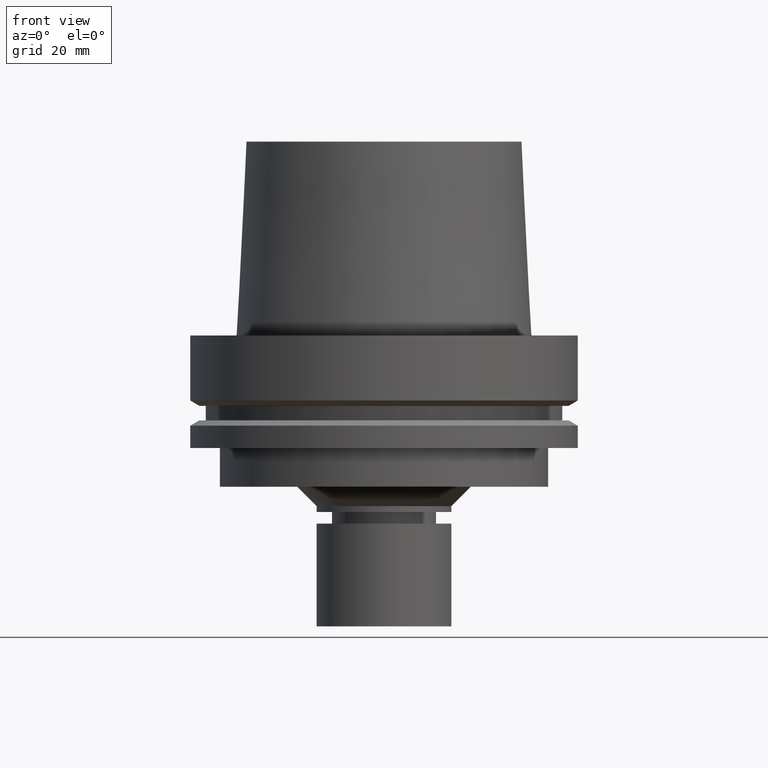
[diagram: clean part render]
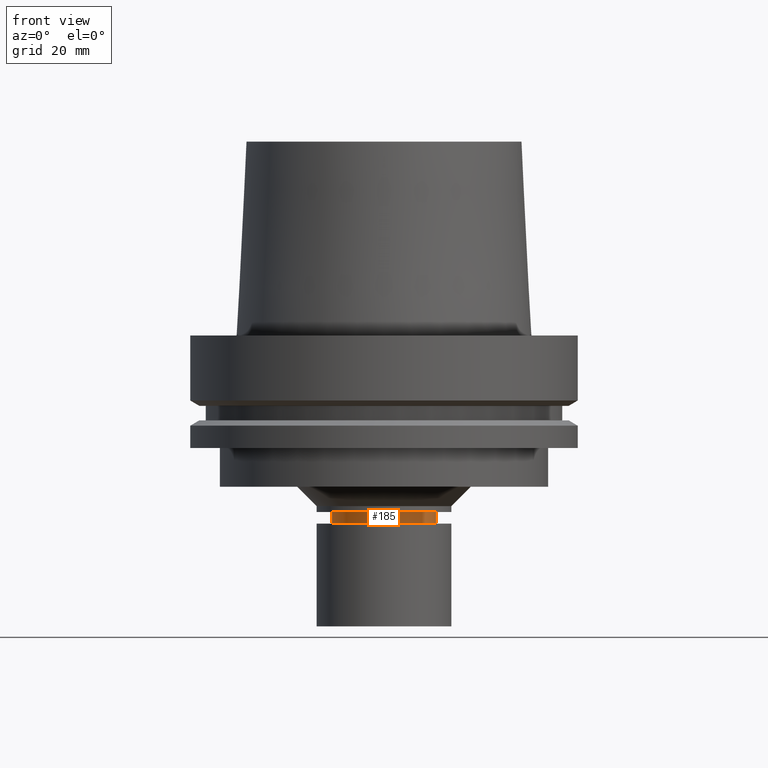
[diagram: same view with one face highlighted and labeled with its STEP entity id]
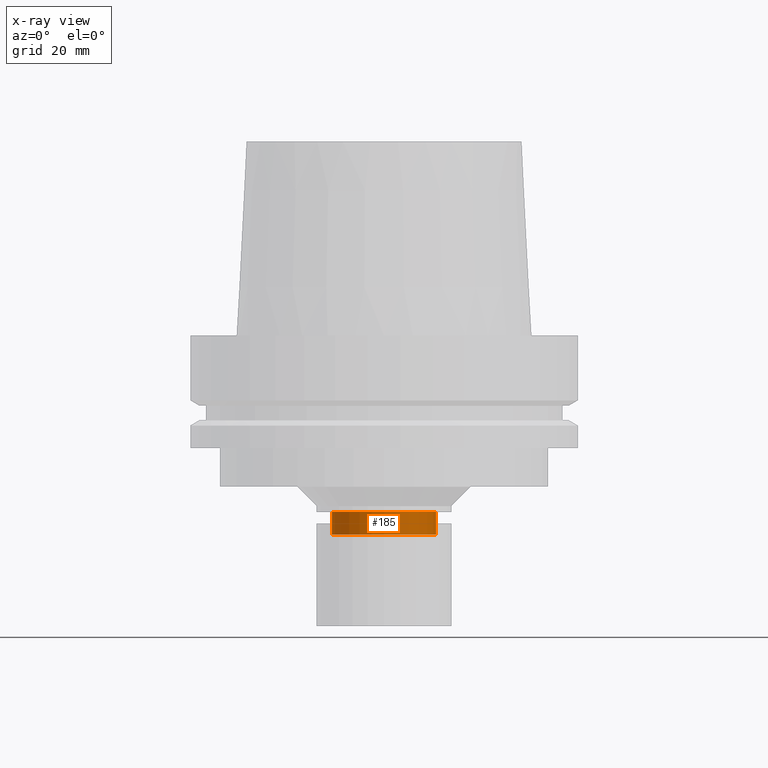
[diagram: x-ray of the same camera — body ghosted, the highlighted face saturated]
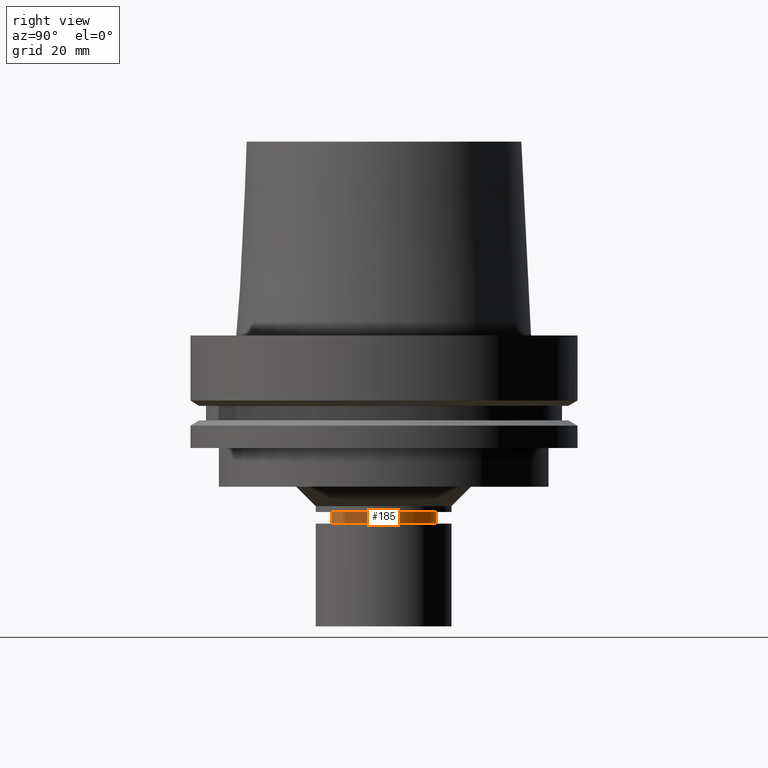
[diagram: same view with one face highlighted and labeled with its STEP entity id]
A machine part, front view. The second image highlights one B-rep face of the part: STEP entity #185.
The next image is the same camera in x-ray: the body ghosted, the highlighted face saturated — about 0% of this face is hidden behind the body in this view.
A second angle (right view) of the same face is appended — the face is thin or edge-on in the first view.
In plain terms, the highlighted cylindrical surface (bore or boss wall) has radius 13.5 mm, axis along (0, 0, -1).
Its self-contained STEP definition (entity closure, byte-faithful):
#141=EDGE_CURVE('Unnamed[1]',#315,#315,#316,.T.);
#166=EDGE_CURVE('Unnamed[1]',#352,#352,#353,.T.);
#185=ADVANCED_FACE('Unnamed[1]',(#382,#383),#384,.T.);
#315=VERTEX_POINT('',#539);
#316=CIRCLE('',#540,13.5000000000005);
#352=VERTEX_POINT('',#585);
#353=CIRCLE('',#586,13.4999999999908);
#382=FACE_BOUND('',#622,.T.);
#383=FACE_BOUND('',#623,.T.);
#384=CYLINDRICAL_SURFACE('',#624,13.4999999999956);
#539=CARTESIAN_POINT('',(3.14258604356096E-015,13.5000000000005,-51.3223248654052));
#540=AXIS2_PLACEMENT_3D('',#760,#761,#762);
#585=CARTESIAN_POINT('',(2.78607146806022E-015,13.4999999999908,-45.4999999999998));
#586=AXIS2_PLACEMENT_3D('',#799,#800,#801);
#622=EDGE_LOOP('',(#833));
#623=EDGE_LOOP('',(#834));
#624=AXIS2_PLACEMENT_3D('',#835,#836,#837);
#760=CARTESIAN_POINT('',(3.14258604356096E-015,6.28517208712191E-015,-51.3223248654052));
#761=DIRECTION('',(6.12323399573677E-017,1.22464679914735E-016,-1.0));
#762=DIRECTION('',(-1.23259516440783E-032,1.0,1.22464679914735E-016));
#799=CARTESIAN_POINT('',(2.78607146806022E-015,5.57214293612043E-015,-45.4999999999998));
#800=DIRECTION('',(6.12323399573677E-017,1.22464679914735E-016,-1.0));
#801=DIRECTION('',(-1.23259516440783E-032,1.0,1.22464679914735E-016));
#833=ORIENTED_EDGE('',*,*,#141,.F.);
#834=ORIENTED_EDGE('',*,*,#166,.T.);
#835=CARTESIAN_POINT('',(2.96432875581059E-015,5.92865751162117E-015,-48.4111624327025));
#836=DIRECTION('',(6.12323399573677E-017,1.22464679914735E-016,-1.0));
#837=DIRECTION('',(-1.23259516440783E-032,1.0,1.22464679914735E-016));